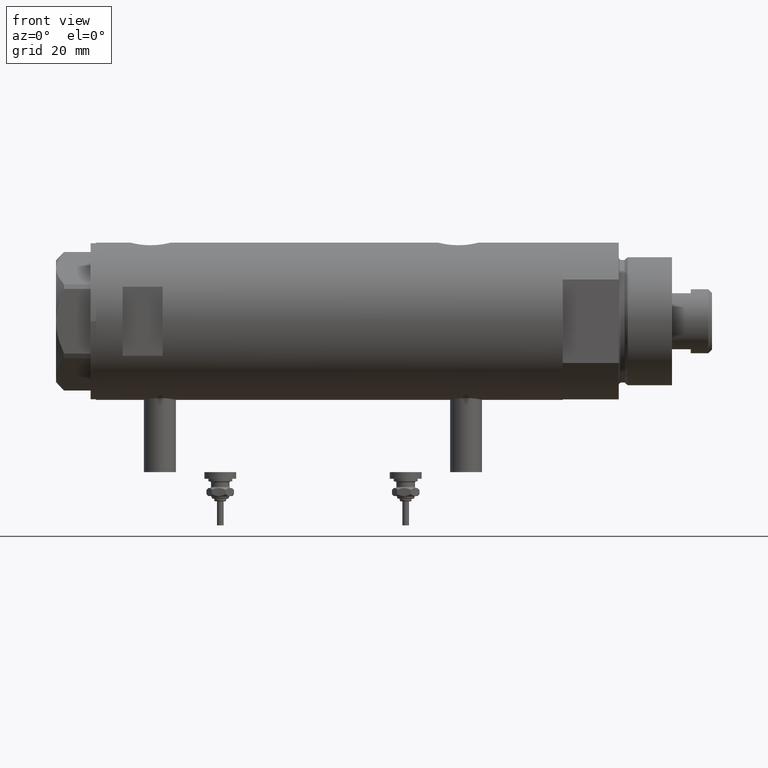
[diagram: clean part render]
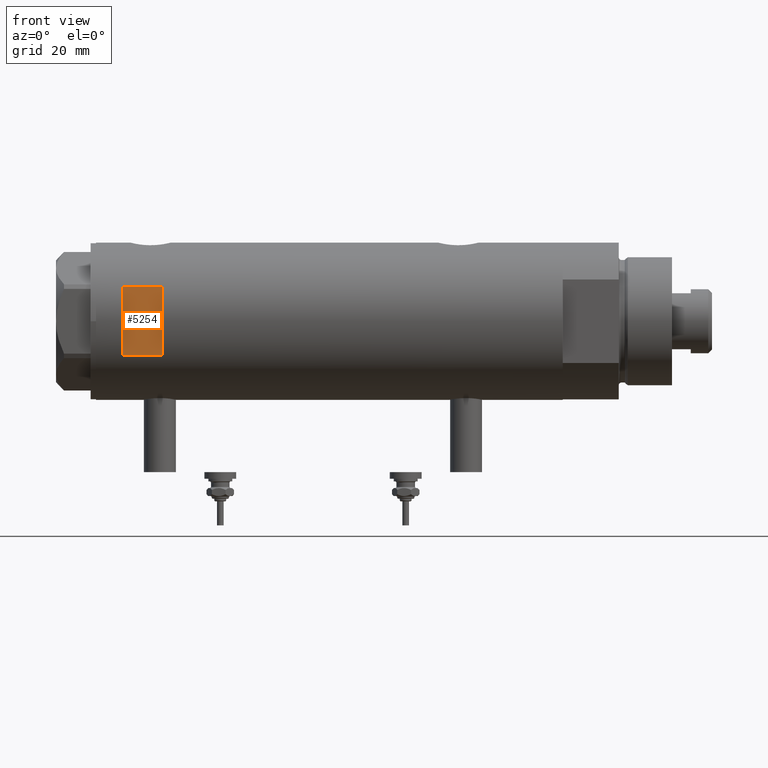
[diagram: same view with one face highlighted and labeled with its STEP entity id]
A machine part, front view. The second image highlights one B-rep face of the part: STEP entity #5254.
In plain terms, the highlighted planar face has unit normal (-0, 1, 0).
Its self-contained STEP definition (entity closure, byte-faithful):
#29 = CARTESIAN_POINT ( 'NONE',  ( 12.96148139681573319, -26.49999999999998934, 77.60000000000002274 ) ) ;
#130 = VERTEX_POINT ( 'NONE', #1765 ) ;
#269 = CARTESIAN_POINT ( 'NONE',  ( -29.50000000000000355, -26.50000000000000355, 77.60000000000002274 ) ) ;
#402 = DIRECTION ( 'NONE',  ( -0.000000000000000000, -0.000000000000000000, -1.000000000000000000 ) ) ;
#500 = DIRECTION ( 'NONE',  ( 1.000000000000000000, -0.000000000000000000, -0.000000000000000000 ) ) ;
#522 = CARTESIAN_POINT ( 'NONE',  ( -12.96148139681573319, -26.49999999999999645, -87.59999999999999432 ) ) ;
#524 = DIRECTION ( 'NONE',  ( 0.000000000000000000, -0.000000000000000000, 1.000000000000000000 ) ) ;
#563 = VERTEX_POINT ( 'NONE', #29 ) ;
#854 = CARTESIAN_POINT ( 'NONE',  ( 12.96148139681573319, -26.49999999999999645, -87.59999999999999432 ) ) ;
#1077 = LINE ( 'NONE', #269, #1293 ) ;
#1276 = VECTOR ( 'NONE', #500, 1000.000000000000000 ) ;
#1293 = VECTOR ( 'NONE', #1974, 1000.000000000000000 ) ;
#1321 = CARTESIAN_POINT ( 'NONE',  ( -29.50000000000000355, -26.50000000000000355, 62.60000000000001563 ) ) ;
#1425 = LINE ( 'NONE', #522, #3934 ) ;
#1704 = LINE ( 'NONE', #854, #5191 ) ;
#1765 = CARTESIAN_POINT ( 'NONE',  ( 12.96148139681573319, -26.49999999999998934, 62.59999999999998721 ) ) ;
#1974 = DIRECTION ( 'NONE',  ( 1.000000000000000000, -0.000000000000000000, -0.000000000000000000 ) ) ;
#2108 = EDGE_CURVE ( 'NONE', #4703, #130, #2312, .T. ) ;
#2162 = DIRECTION ( 'NONE',  ( 0.000000000000000000, 0.000000000000000000, 1.000000000000000000 ) ) ;
#2227 = EDGE_CURVE ( 'NONE', #130, #563, #1704, .T. ) ;
#2312 = LINE ( 'NONE', #1321, #1276 ) ;
#2470 = ORIENTED_EDGE ( 'NONE', *, *, #2108, .T. ) ;
#2717 = CARTESIAN_POINT ( 'NONE',  ( -29.50000000000000355, -26.50000000000000355, 77.60000000000002274 ) ) ;
#2749 = PLANE ( 'NONE',  #3857 ) ;
#3292 = ORIENTED_EDGE ( 'NONE', *, *, #4374, .T. ) ;
#3513 = ORIENTED_EDGE ( 'NONE', *, *, #3784, .F. ) ;
#3738 = ORIENTED_EDGE ( 'NONE', *, *, #2227, .T. ) ;
#3784 = EDGE_CURVE ( 'NONE', #5476, #563, #1077, .T. ) ;
#3857 = AXIS2_PLACEMENT_3D ( 'NONE', #2717, #4570, #524 ) ;
#3934 = VECTOR ( 'NONE', #402, 1000.000000000000000 ) ;
#4374 = EDGE_CURVE ( 'NONE', #5476, #4703, #1425, .T. ) ;
#4565 = CARTESIAN_POINT ( 'NONE',  ( -12.96148139681573319, -26.49999999999998934, 62.59999999999998721 ) ) ;
#4570 = DIRECTION ( 'NONE',  ( 0.000000000000000000, 1.000000000000000000, 0.000000000000000000 ) ) ;
#4703 = VERTEX_POINT ( 'NONE', #4565 ) ;
#4823 = CARTESIAN_POINT ( 'NONE',  ( -12.96148139681573319, -26.49999999999998934, 77.60000000000002274 ) ) ;
#5041 = FACE_OUTER_BOUND ( 'NONE', #5507, .T. ) ;
#5191 = VECTOR ( 'NONE', #2162, 1000.000000000000000 ) ;
#5254 = ADVANCED_FACE ( 'NONE', ( #5041 ), #2749, .F. ) ;
#5476 = VERTEX_POINT ( 'NONE', #4823 ) ;
#5507 = EDGE_LOOP ( 'NONE', ( #3292, #2470, #3738, #3513 ) ) ;